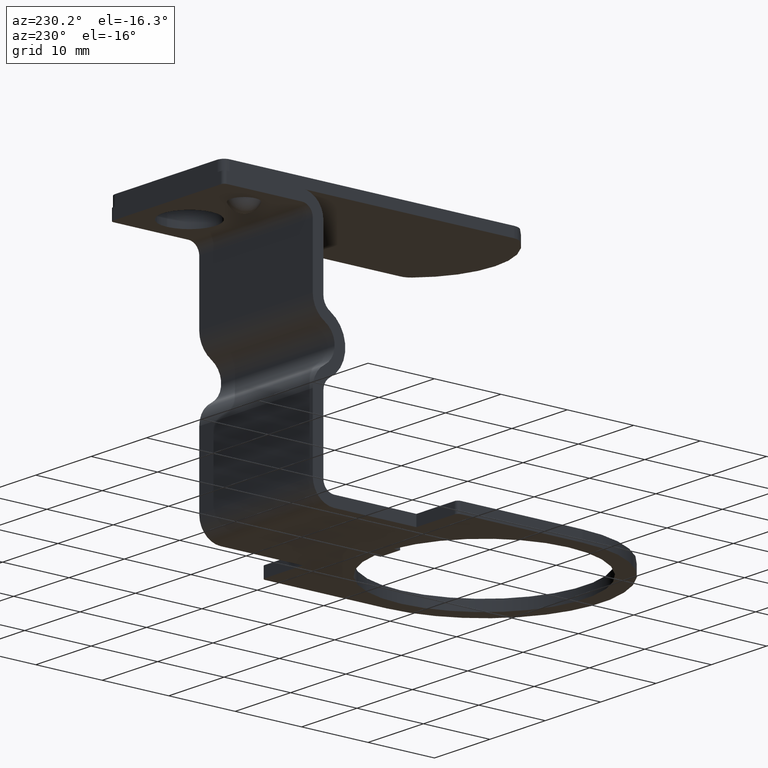
[diagram: clean part render]
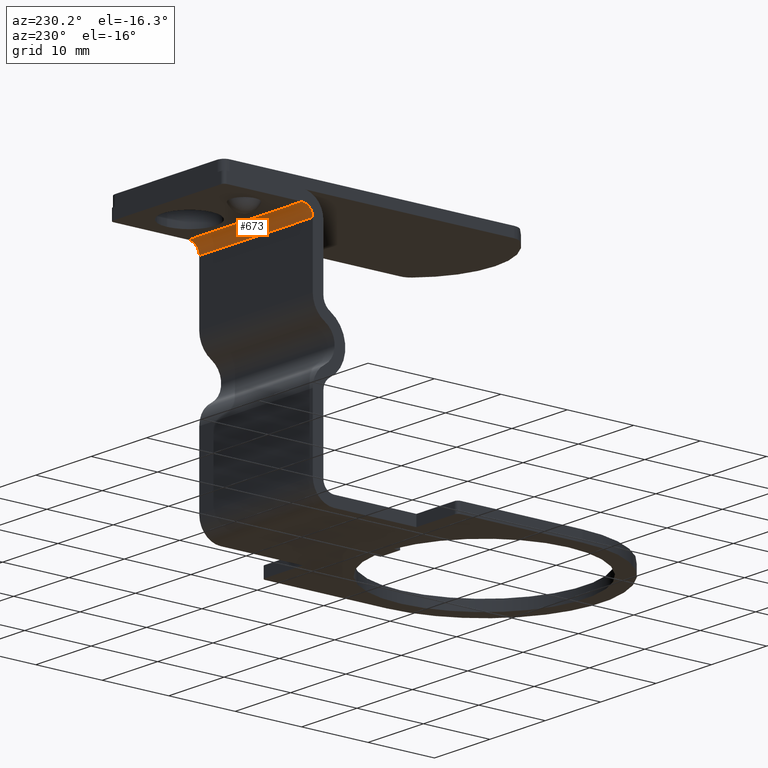
[diagram: same view with one face highlighted and labeled with its STEP entity id]
A machine part, auxiliary view. The second image highlights one B-rep face of the part: STEP entity #673.
In plain terms, the highlighted cylindrical surface (edge-blend (fillet) strip) has radius 1.6 mm, axis along (-1, 0, 0).
Its self-contained STEP definition (entity closure, byte-faithful):
#444=CARTESIAN_POINT('',(12.137544175698896,15.285240578215578,34.399999999999999));
#445=VERTEX_POINT('',#444);
#452=CARTESIAN_POINT('',(12.137544175698896,16.885240578215587,36.000000000000007));
#453=VERTEX_POINT('',#452);
#454=CARTESIAN_POINT('',(12.137544175698896,16.885240578215576,34.400000000000006));
#455=DIRECTION('',(-1.0,0.0,0.0));
#456=DIRECTION('',(0.0,-1.0,0.0));
#457=AXIS2_PLACEMENT_3D('',#454,#455,#456);
#458=CIRCLE('',#457,1.599999999999999);
#459=EDGE_CURVE('',#445,#453,#458,.T.);
#477=CARTESIAN_POINT('',(-8.362455824301112,16.885240578215576,36.000000000000007));
#478=VERTEX_POINT('',#477);
#479=CARTESIAN_POINT('',(-8.362455824301112,16.885240578215576,36.000000000000007));
#480=DIRECTION('',(1.0,0.0,0.0));
#481=VECTOR('',#480,20.500000000000007);
#482=LINE('',#479,#481);
#483=EDGE_CURVE('',#478,#453,#482,.T.);
#509=CARTESIAN_POINT('',(-8.362455824301112,15.285240578215578,34.399999999999999));
#510=VERTEX_POINT('',#509);
#511=CARTESIAN_POINT('',(-8.362455824301112,16.885240578215576,34.400000000000006));
#512=DIRECTION('',(-1.0,0.0,0.0));
#513=DIRECTION('',(0.0,-1.0,0.0));
#514=AXIS2_PLACEMENT_3D('',#511,#512,#513);
#515=CIRCLE('',#514,1.599999999999999);
#516=EDGE_CURVE('',#510,#478,#515,.T.);
#657=CARTESIAN_POINT('',(1.887544175698892,16.885240578215576,34.400000000000006));
#658=DIRECTION('',(-1.0,0.0,0.0));
#659=DIRECTION('',(0.0,-1.0,0.0));
#660=AXIS2_PLACEMENT_3D('',#657,#658,#659);
#661=CYLINDRICAL_SURFACE('',#660,1.599999999999999);
#662=ORIENTED_EDGE('',*,*,#483,.T.);
#663=ORIENTED_EDGE('',*,*,#459,.F.);
#664=CARTESIAN_POINT('',(-8.362455824301112,15.285240578215578,34.399999999999999));
#665=DIRECTION('',(1.0,0.0,0.0));
#666=VECTOR('',#665,20.500000000000007);
#667=LINE('',#664,#666);
#668=EDGE_CURVE('',#510,#445,#667,.T.);
#669=ORIENTED_EDGE('',*,*,#668,.F.);
#670=ORIENTED_EDGE('',*,*,#516,.T.);
#671=EDGE_LOOP('',(#662,#663,#669,#670));
#672=FACE_OUTER_BOUND('',#671,.T.);
#673=ADVANCED_FACE('',(#672),#661,.F.);